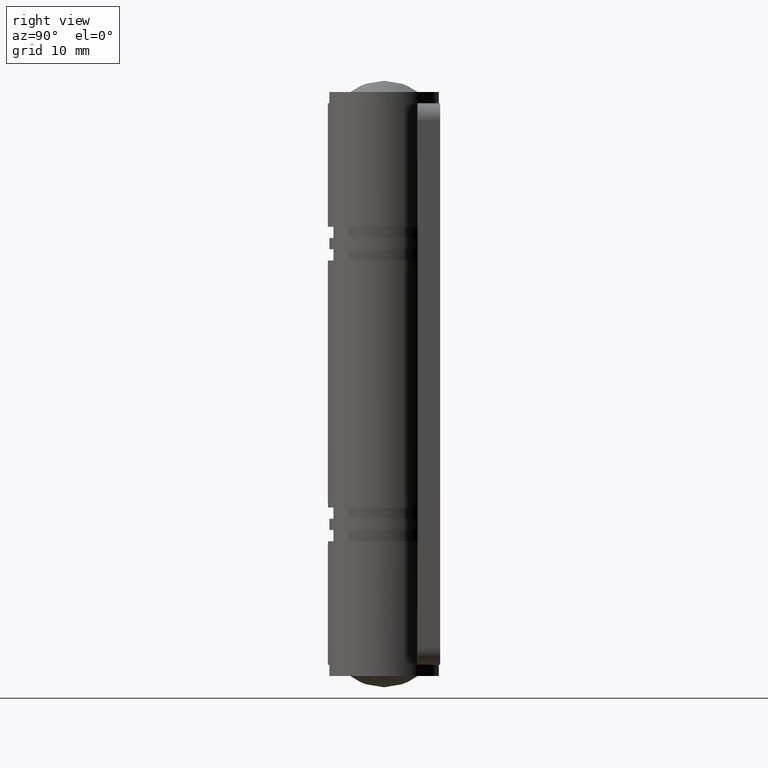
[diagram: clean part render]
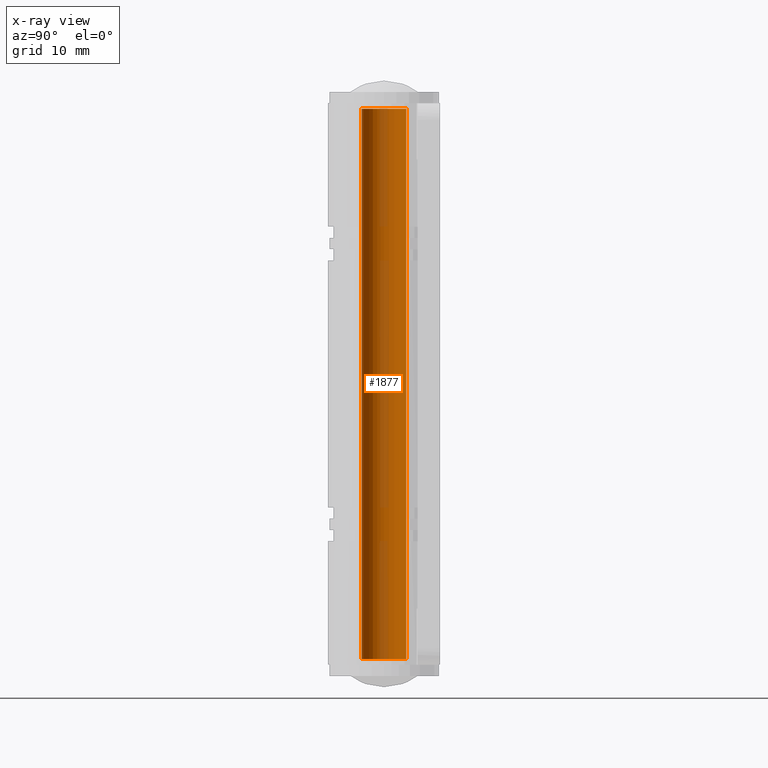
[diagram: x-ray — body ghosted, one internal face saturated and labeled with its STEP entity id]
A machine part, right view, then the same camera in x-ray: the body is ghosted and one INTERNAL B-rep face — a face not visible from any outside direction — is saturated and labeled: STEP entity #1877.
In plain terms, the highlighted face is a freeform B-spline surface patch.
Its self-contained STEP definition (entity closure, byte-faithful):
#1714=CARTESIAN_POINT('',(-0.236068469330272,1.986019052728191,49.500000000000000));
#1715=VERTEX_POINT('',#1714);
#1733=CARTESIAN_POINT('',(0.122097079132769,-1.996269596842712,49.499999999999993));
#1734=VERTEX_POINT('',#1733);
#1748=CARTESIAN_POINT('',(0.122097079132769,-1.996269596842712,0.499999999999843));
#1749=VERTEX_POINT('',#1748);
#1750=CARTESIAN_POINT('',(0.122097079132769,-1.996269596842712,49.499999999999993));
#1751=CARTESIAN_POINT('',(0.122097079132769,-1.996269596842712,0.499999999999843));
#1752=QUASI_UNIFORM_CURVE('',1,(#1750,#1751),.UNSPECIFIED.,.F.,.U.);
#1753=EDGE_CURVE('',#1734,#1749,#1752,.T.);
#1770=CARTESIAN_POINT('',(-0.236068469330272,1.986019052728191,0.499999999999843));
#1771=VERTEX_POINT('',#1770);
#1787=CARTESIAN_POINT('',(-0.236068469330272,1.986019052728191,49.500000000000000));
#1788=CARTESIAN_POINT('',(-0.236068469330272,1.986019052728191,0.499999999999843));
#1789=QUASI_UNIFORM_CURVE('',1,(#1787,#1788),.UNSPECIFIED.,.F.,.U.);
#1790=EDGE_CURVE('',#1715,#1771,#1789,.T.);
#1795=CARTESIAN_POINT('',(0.122097079069887,-1.996269596846559,50.725000000000023));
#1796=CARTESIAN_POINT('',(-1.874172517776672,-2.118366675916446,50.725000000000016));
#1797=CARTESIAN_POINT('',(-1.996269596846559,-0.122097079069887,50.725000000000023));
#1798=CARTESIAN_POINT('',(-2.111572393468044,1.763086981681496,50.725000000000030));
#1799=CARTESIAN_POINT('',(-0.236068469313851,1.986019052730144,50.725000000000023));
#1800=CARTESIAN_POINT('',(0.122097079069887,-1.996269596846559,-0.755625000000158));
#1801=CARTESIAN_POINT('',(-1.874172517776672,-2.118366675916446,-0.755625000000158));
#1802=CARTESIAN_POINT('',(-1.996269596846559,-0.122097079069887,-0.755625000000158));
#1803=CARTESIAN_POINT('',(-2.111572393468044,1.763086981681496,-0.755625000000158));
#1804=CARTESIAN_POINT('',(-0.236068469313851,1.986019052730144,-0.755625000000158));
#1812=(BOUNDED_SURFACE()B_SPLINE_SURFACE(2,1,((#1795,#1800),(#1796,#1801),(#1797,#1802),(#1798,#1803),(#1799,#1804)),.UNSPECIFIED.,.F.,.F.,.U.)B_SPLINE_SURFACE_WITH_KNOTS((3,2,3),(2,2),(0.0,3.313708498989449,6.494868658019320),(0.0,51.480625000000188),.UNSPECIFIED.)GEOMETRIC_REPRESENTATION_ITEM()RATIONAL_B_SPLINE_SURFACE(((1.0,1.0),(0.707106781186548,0.707106781186548),(1.0,1.0),(0.718822509939086,0.718822509939086),(0.977505800795127,0.977505800795127)))REPRESENTATION_ITEM('')SURFACE());
#1813=CARTESIAN_POINT('',(-2.000000000002830,0.0,49.500000000000000));
#1814=VERTEX_POINT('',#1813);
#1815=CARTESIAN_POINT('',(-2.000000000002830,0.0,49.500000000000000));
#1816=CARTESIAN_POINT('',(-2.000000000002831,1.776349051875667,49.500000000000014));
#1817=CARTESIAN_POINT('',(-0.236068469330272,1.986019052728191,49.499999999999993));
#1825=(BOUNDED_CURVE()B_SPLINE_CURVE(2,(#1815,#1816,#1817),.UNSPECIFIED.,.F.,.U.)B_SPLINE_CURVE_WITH_KNOTS((3,3),(0.0,0.229562473512850),.UNSPECIFIED.)CURVE()GEOMETRIC_REPRESENTATION_ITEM()RATIONAL_B_SPLINE_CURVE((1.0,0.731050832856174,0.956026754182408))REPRESENTATION_ITEM(''));
#1826=EDGE_CURVE('',#1814,#1715,#1825,.T.);
#1827=ORIENTED_EDGE('',*,*,#1826,.T.);
#1828=ORIENTED_EDGE('',*,*,#1790,.T.);
#1829=CARTESIAN_POINT('',(-2.000000000002830,0.0,0.499999999999844));
#1830=VERTEX_POINT('',#1829);
#1831=CARTESIAN_POINT('',(-2.000000000002830,0.0,0.499999999999844));
#1832=CARTESIAN_POINT('',(-2.000000000002831,1.776349051875667,0.499999999999844));
#1833=CARTESIAN_POINT('',(-0.236068469330272,1.986019052728191,0.499999999999843));
#1841=(BOUNDED_CURVE()B_SPLINE_CURVE(2,(#1831,#1832,#1833),.UNSPECIFIED.,.F.,.U.)B_SPLINE_CURVE_WITH_KNOTS((3,3),(0.0,0.229562473512850),.UNSPECIFIED.)CURVE()GEOMETRIC_REPRESENTATION_ITEM()RATIONAL_B_SPLINE_CURVE((1.0,0.731050832856174,0.956026754182408))REPRESENTATION_ITEM(''));
#1842=EDGE_CURVE('',#1830,#1771,#1841,.T.);
#1843=ORIENTED_EDGE('',*,*,#1842,.F.);
#1844=CARTESIAN_POINT('',(0.122097079132769,-1.996269596842712,0.499999999999843));
#1845=CARTESIAN_POINT('',(0.061105526660323,-2.000000000002831,0.499999999999844));
#1846=CARTESIAN_POINT('',(0.0,-2.000000000002830,0.499999999999844));
#1847=CARTESIAN_POINT('',(-2.000000000002830,-2.000000000002830,0.499999999999844));
#1848=CARTESIAN_POINT('',(-2.000000000002830,0.0,0.499999999999844));
#1856=(BOUNDED_CURVE()B_SPLINE_CURVE(2,(#1844,#1845,#1846,#1847,#1848),.UNSPECIFIED.,.F.,.U.)B_SPLINE_CURVE_WITH_KNOTS((3,2,3),(0.739332962231098,0.750000000000000,1.0),.UNSPECIFIED.)CURVE()GEOMETRIC_REPRESENTATION_ITEM()RATIONAL_B_SPLINE_CURVE((0.976072041649904,0.987502787890646,1.0,0.707106781186547,1.0))REPRESENTATION_ITEM(''));
#1857=EDGE_CURVE('',#1749,#1830,#1856,.T.);
#1858=ORIENTED_EDGE('',*,*,#1857,.F.);
#1859=ORIENTED_EDGE('',*,*,#1753,.F.);
#1860=CARTESIAN_POINT('',(0.122097079132769,-1.996269596842713,49.499999999999993));
#1861=CARTESIAN_POINT('',(0.061105526660323,-2.000000000002830,49.500000000000014));
#1862=CARTESIAN_POINT('',(0.0,-2.000000000002830,49.500000000000000));
#1863=CARTESIAN_POINT('',(-2.000000000002830,-2.000000000002830,49.500000000000000));
#1864=CARTESIAN_POINT('',(-2.000000000002830,0.0,49.500000000000000));
#1872=(BOUNDED_CURVE()B_SPLINE_CURVE(2,(#1860,#1861,#1862,#1863,#1864),.UNSPECIFIED.,.F.,.U.)B_SPLINE_CURVE_WITH_KNOTS((3,2,3),(0.739332962231098,0.750000000000000,1.0),.UNSPECIFIED.)CURVE()GEOMETRIC_REPRESENTATION_ITEM()RATIONAL_B_SPLINE_CURVE((0.976072041649904,0.987502787890646,1.0,0.707106781186547,1.0))REPRESENTATION_ITEM(''));
#1873=EDGE_CURVE('',#1734,#1814,#1872,.T.);
#1874=ORIENTED_EDGE('',*,*,#1873,.T.);
#1875=EDGE_LOOP('',(#1827,#1828,#1843,#1858,#1859,#1874));
#1876=FACE_OUTER_BOUND('',#1875,.T.);
#1877=ADVANCED_FACE('',(#1876),#1812,.T.);